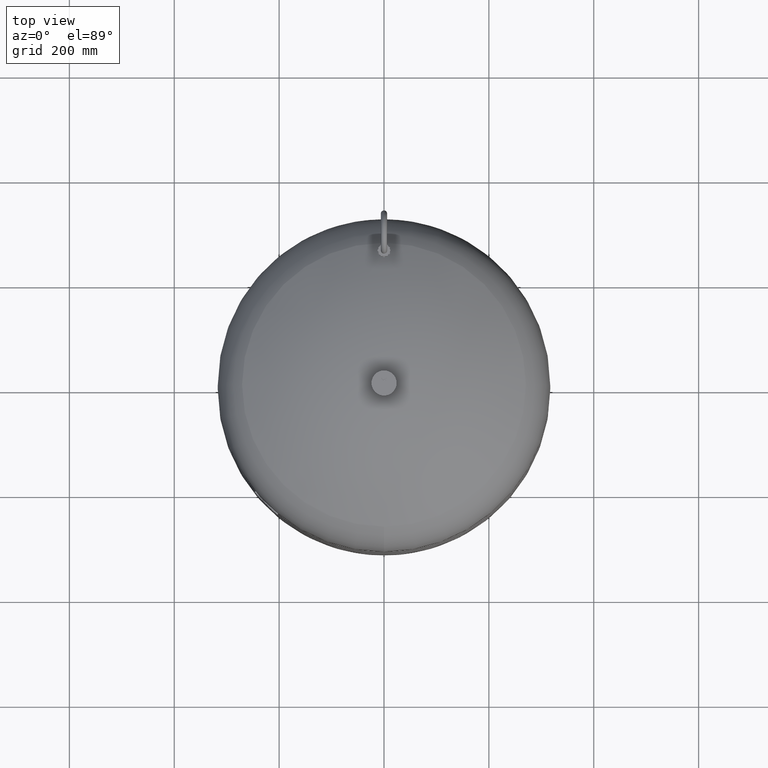
[diagram: clean part render]
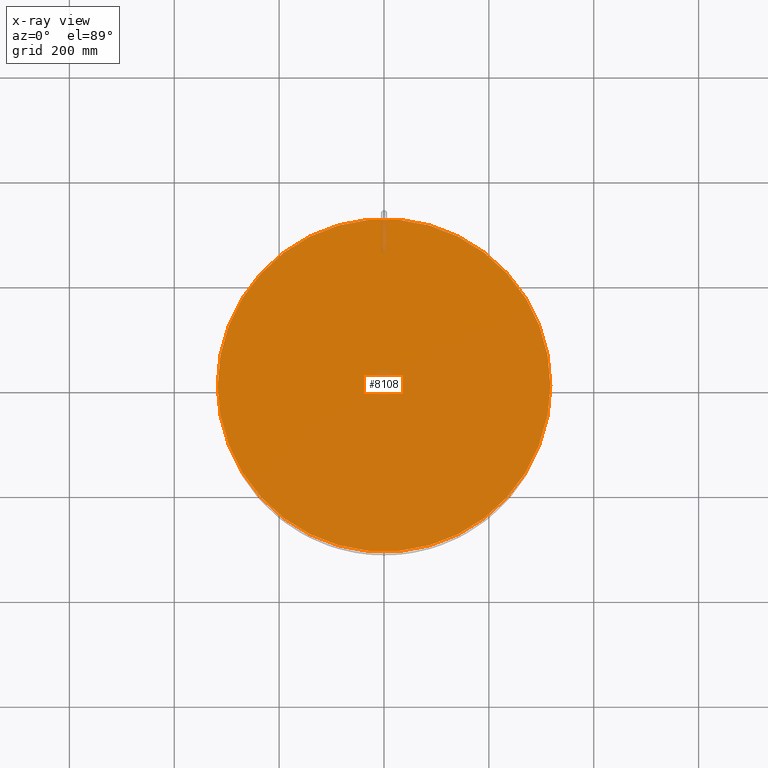
[diagram: x-ray — body ghosted, one internal face saturated and labeled with its STEP entity id]
A machine part, top view, then the same camera in x-ray: the body is ghosted and one INTERNAL B-rep face — a face not visible from any outside direction — is saturated and labeled: STEP entity #8108.
In plain terms, the highlighted planar face has unit normal (0, 0, -1).
Its self-contained STEP definition (entity closure, byte-faithful):
#7806=CARTESIAN_POINT('',(-317.0,1.077689E-014,768.000000000000110));
#7807=VERTEX_POINT('',#7806);
#7816=CARTESIAN_POINT('',(317.0,4.959948E-014,768.000000000000110));
#7817=VERTEX_POINT('',#7816);
#7818=CARTESIAN_POINT('',(-1.558411E-014,4.959820E-014,768.000000000000110));
#7819=DIRECTION('',(0.0,0.0,-1.0));
#7820=DIRECTION('',(-1.0,0.0,0.0));
#7821=AXIS2_PLACEMENT_3D('',#7818,#7819,#7820);
#7822=CIRCLE('',#7821,317.0);
#7823=EDGE_CURVE('',#7817,#7807,#7822,.T.);
#8089=CARTESIAN_POINT('',(-1.558411E-014,4.959820E-014,768.000000000000110));
#8090=DIRECTION('',(0.0,0.0,-1.0));
#8091=DIRECTION('',(-1.0,0.0,0.0));
#8092=AXIS2_PLACEMENT_3D('',#8089,#8090,#8091);
#8093=CIRCLE('',#8092,317.0);
#8094=EDGE_CURVE('',#7807,#7817,#8093,.T.);
#8099=CARTESIAN_POINT('',(-158.500000000000000,3.018754E-014,768.0));
#8100=DIRECTION('',(0.0,0.0,-1.0));
#8101=DIRECTION('',(0.0,1.0,0.0));
#8102=AXIS2_PLACEMENT_3D('',#8099,#8100,#8101);
#8103=PLANE('',#8102);
#8104=ORIENTED_EDGE('',*,*,#8094,.T.);
#8105=ORIENTED_EDGE('',*,*,#7823,.T.);
#8106=EDGE_LOOP('',(#8104,#8105));
#8107=FACE_OUTER_BOUND('',#8106,.T.);
#8108=ADVANCED_FACE('',(#8107),#8103,.T.);